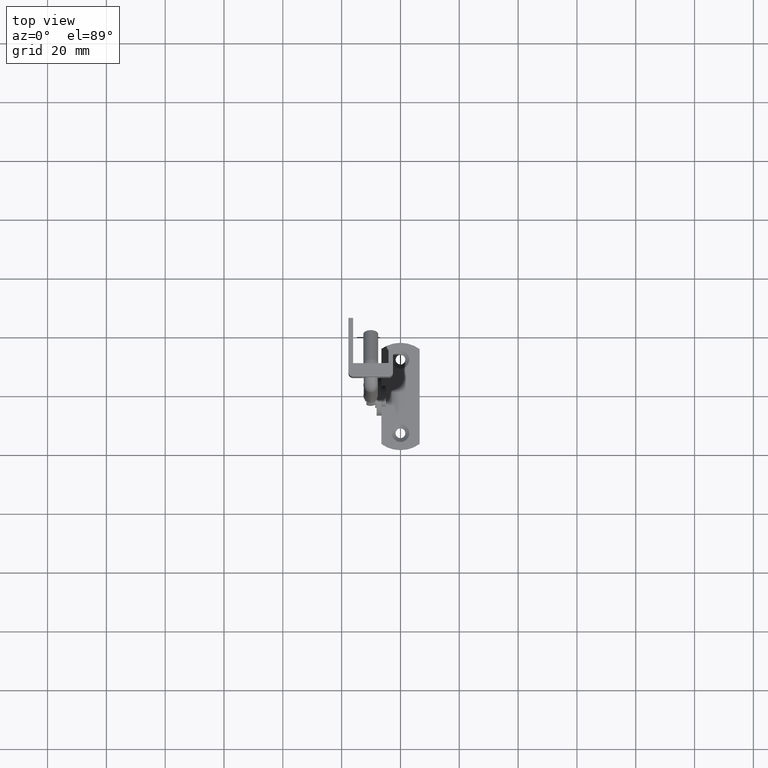
[diagram: clean part render]
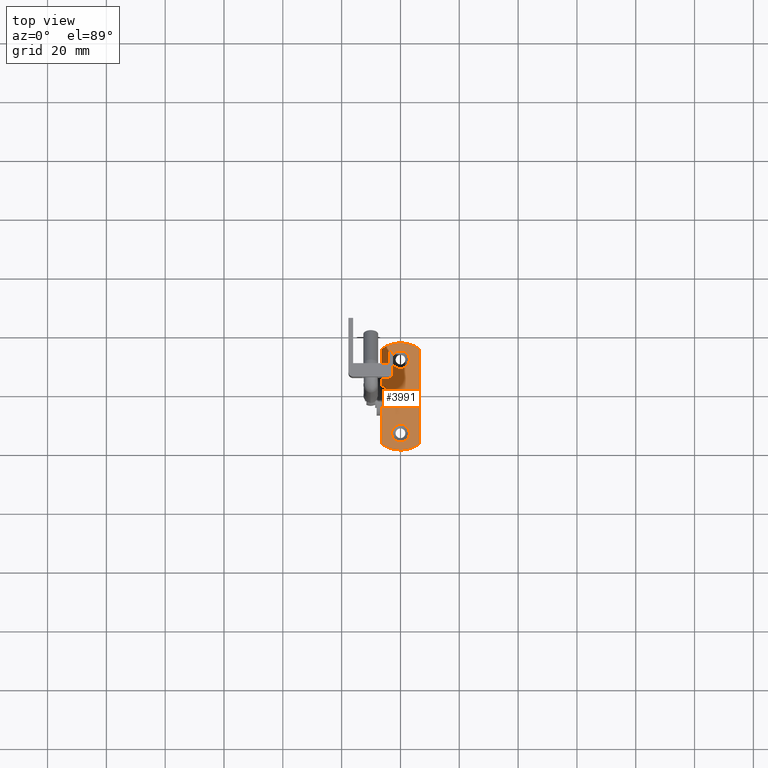
[diagram: same view with one face highlighted and labeled with its STEP entity id]
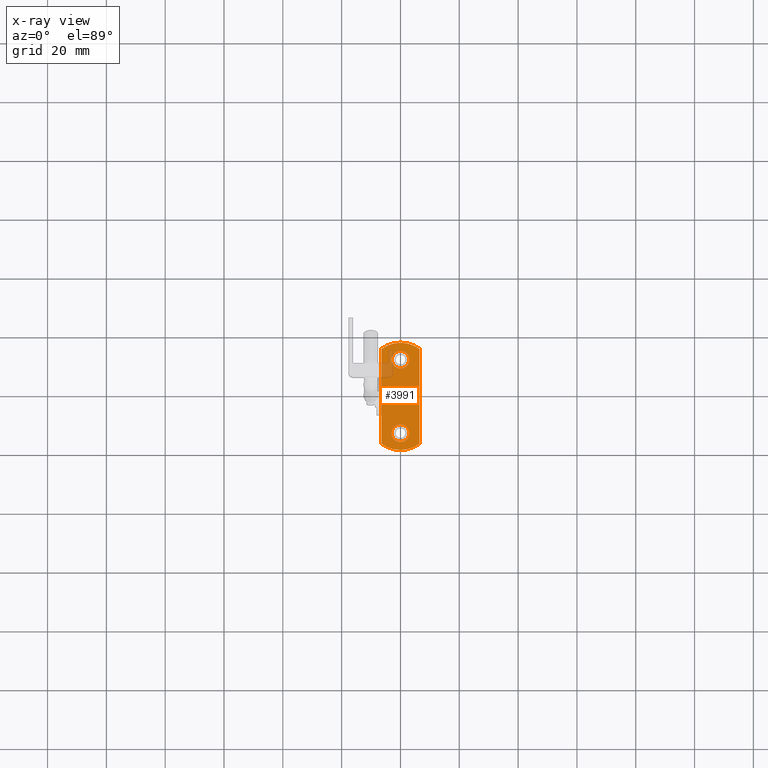
[diagram: x-ray of the same camera — body ghosted, the highlighted face saturated]
A machine part, top view. The second image highlights one B-rep face of the part: STEP entity #3991.
The next image is the same camera in x-ray: the body ghosted, the highlighted face saturated — about 6% of this face is hidden behind the body in this view.
In plain terms, the highlighted face is a freeform B-spline surface patch.
Its self-contained STEP definition (entity closure, byte-faithful):
#2705=CARTESIAN_POINT('',(2.529120146212343,14.113552381015570,1.599991000042932));
#2706=VERTEX_POINT('',#2705);
#2712=CARTESIAN_POINT('',(-3.0,12.500000000000000,1.599990999999905));
#2713=VERTEX_POINT('',#2712);
#2714=CARTESIAN_POINT('',(-3.0,12.500000000000000,1.599990999999905));
#2715=CARTESIAN_POINT('',(-3.0,15.500000000000004,1.599990999999905));
#2716=CARTESIAN_POINT('',(0.0,15.500000000000000,1.599990999999905));
#2717=CARTESIAN_POINT('',(1.644580967035528,15.499999999999998,1.599990999999906));
#2718=CARTESIAN_POINT('',(2.529120146212343,14.113552381015568,1.599991000042931));
#2726=(BOUNDED_CURVE()B_SPLINE_CURVE(2,(#2714,#2715,#2716,#2717,#2718),.UNSPECIFIED.,.F.,.U.)B_SPLINE_CURVE_WITH_KNOTS((3,2,3),(0.0,0.250000000000000,0.407950112548626),.UNSPECIFIED.)CURVE()GEOMETRIC_REPRESENTATION_ITEM()RATIONAL_B_SPLINE_CURVE((1.0,0.707106781186548,1.0,0.814949932494743,0.863729296906176))REPRESENTATION_ITEM(''));
#2727=EDGE_CURVE('',#2713,#2706,#2726,.T.);
#2729=CARTESIAN_POINT('',(0.235377293888718,9.509247998455212,1.599991000870328));
#2730=VERTEX_POINT('',#2729);
#2731=CARTESIAN_POINT('',(0.235377293888718,9.509247998455212,1.599991000870328));
#2732=CARTESIAN_POINT('',(0.117870327690698,9.500000000000002,1.599990999999905));
#2733=CARTESIAN_POINT('',(0.0,9.500000000000002,1.599990999999905));
#2734=CARTESIAN_POINT('',(-3.0,9.500000000000002,1.599990999999905));
#2735=CARTESIAN_POINT('',(-3.0,12.500000000000000,1.599990999999905));
#2743=(BOUNDED_CURVE()B_SPLINE_CURVE(2,(#2731,#2732,#2733,#2734,#2735),.UNSPECIFIED.,.F.,.U.)B_SPLINE_CURVE_WITH_KNOTS((3,2,3),(0.736331299871938,0.750000000000000,1.0),.UNSPECIFIED.)CURVE()GEOMETRIC_REPRESENTATION_ITEM()RATIONAL_B_SPLINE_CURVE((0.969723354584023,0.983986121689984,1.0,0.707106781186548,1.0))REPRESENTATION_ITEM(''));
#2744=EDGE_CURVE('',#2730,#2713,#2743,.T.);
#2848=CARTESIAN_POINT('',(3.0,12.500000000000000,1.599990999999905));
#2849=VERTEX_POINT('',#2848);
#2850=CARTESIAN_POINT('',(3.0,12.500000000000000,1.599990999999905));
#2851=CARTESIAN_POINT('',(3.000000000000000,9.726828537371553,1.599990999999905));
#2852=CARTESIAN_POINT('',(0.235377293888718,9.509247998455212,1.599991000870328));
#2860=(BOUNDED_CURVE()B_SPLINE_CURVE(2,(#2850,#2851,#2852),.UNSPECIFIED.,.F.,.U.)B_SPLINE_CURVE_WITH_KNOTS((3,3),(0.500000000000000,0.736331299871937),.UNSPECIFIED.)CURVE()GEOMETRIC_REPRESENTATION_ITEM()RATIONAL_B_SPLINE_CURVE((1.0,0.723120659496565,0.969723354584021))REPRESENTATION_ITEM(''));
#2861=EDGE_CURVE('',#2849,#2730,#2860,.T.);
#2863=CARTESIAN_POINT('',(2.529120146212344,14.113552381015571,1.599991000042931));
#2864=CARTESIAN_POINT('',(3.000000000000001,13.375484166979385,1.599990999999905));
#2865=CARTESIAN_POINT('',(3.0,12.500000000000000,1.599990999999905));
#2873=(BOUNDED_CURVE()B_SPLINE_CURVE(2,(#2863,#2864,#2865),.UNSPECIFIED.,.F.,.U.)B_SPLINE_CURVE_WITH_KNOTS((3,3),(0.407950112548626,0.500000000000000),.UNSPECIFIED.)CURVE()GEOMETRIC_REPRESENTATION_ITEM()RATIONAL_B_SPLINE_CURVE((0.863729296906176,0.892156848691804,1.0))REPRESENTATION_ITEM(''));
#2874=EDGE_CURVE('',#2706,#2849,#2873,.T.);
#3049=CARTESIAN_POINT('',(2.529120146212343,-10.886447618984430,1.599991000042932));
#3050=VERTEX_POINT('',#3049);
#3056=CARTESIAN_POINT('',(-3.0,-12.500000000000000,1.599990999999905));
#3057=VERTEX_POINT('',#3056);
#3058=CARTESIAN_POINT('',(-3.0,-12.500000000000000,1.599990999999905));
#3059=CARTESIAN_POINT('',(-3.0,-9.500000000000002,1.599990999999905));
#3060=CARTESIAN_POINT('',(0.0,-9.500000000000002,1.599990999999905));
#3061=CARTESIAN_POINT('',(1.644580967035526,-9.500000000000002,1.599990999999905));
#3062=CARTESIAN_POINT('',(2.529120146212343,-10.886447618984432,1.599991000042931));
#3070=(BOUNDED_CURVE()B_SPLINE_CURVE(2,(#3058,#3059,#3060,#3061,#3062),.UNSPECIFIED.,.F.,.U.)B_SPLINE_CURVE_WITH_KNOTS((3,2,3),(0.0,0.250000000000000,0.407950112548626),.UNSPECIFIED.)CURVE()GEOMETRIC_REPRESENTATION_ITEM()RATIONAL_B_SPLINE_CURVE((1.0,0.707106781186548,1.0,0.814949932494743,0.863729296906176))REPRESENTATION_ITEM(''));
#3071=EDGE_CURVE('',#3057,#3050,#3070,.T.);
#3073=CARTESIAN_POINT('',(0.235377293888717,-15.490752001544790,1.599991000870329));
#3074=VERTEX_POINT('',#3073);
#3075=CARTESIAN_POINT('',(0.235377293888717,-15.490752001544786,1.599991000870329));
#3076=CARTESIAN_POINT('',(0.117870327690697,-15.500000000000002,1.599990999999906));
#3077=CARTESIAN_POINT('',(0.0,-15.500000000000000,1.599990999999905));
#3078=CARTESIAN_POINT('',(-3.0,-15.500000000000004,1.599990999999905));
#3079=CARTESIAN_POINT('',(-3.0,-12.500000000000000,1.599990999999905));
#3087=(BOUNDED_CURVE()B_SPLINE_CURVE(2,(#3075,#3076,#3077,#3078,#3079),.UNSPECIFIED.,.F.,.U.)B_SPLINE_CURVE_WITH_KNOTS((3,2,3),(0.736331299871938,0.750000000000000,1.0),.UNSPECIFIED.)CURVE()GEOMETRIC_REPRESENTATION_ITEM()RATIONAL_B_SPLINE_CURVE((0.969723354584024,0.983986121689984,1.0,0.707106781186548,1.0))REPRESENTATION_ITEM(''));
#3088=EDGE_CURVE('',#3074,#3057,#3087,.T.);
#3192=CARTESIAN_POINT('',(3.0,-12.500000000000000,1.599990999999905));
#3193=VERTEX_POINT('',#3192);
#3194=CARTESIAN_POINT('',(3.0,-12.500000000000000,1.599990999999905));
#3195=CARTESIAN_POINT('',(3.000000000000000,-15.273171462628458,1.599990999999905));
#3196=CARTESIAN_POINT('',(0.235377293888717,-15.490752001544793,1.599991000870329));
#3204=(BOUNDED_CURVE()B_SPLINE_CURVE(2,(#3194,#3195,#3196),.UNSPECIFIED.,.F.,.U.)B_SPLINE_CURVE_WITH_KNOTS((3,3),(0.500000000000000,0.736331299871937),.UNSPECIFIED.)CURVE()GEOMETRIC_REPRESENTATION_ITEM()RATIONAL_B_SPLINE_CURVE((1.0,0.723120659496565,0.969723354584021))REPRESENTATION_ITEM(''));
#3205=EDGE_CURVE('',#3193,#3074,#3204,.T.);
#3207=CARTESIAN_POINT('',(2.529120146212343,-10.886447618984432,1.599991000042931));
#3208=CARTESIAN_POINT('',(3.000000000000000,-11.624515833020611,1.599990999999905));
#3209=CARTESIAN_POINT('',(3.0,-12.500000000000000,1.599990999999905));
#3217=(BOUNDED_CURVE()B_SPLINE_CURVE(2,(#3207,#3208,#3209),.UNSPECIFIED.,.F.,.U.)B_SPLINE_CURVE_WITH_KNOTS((3,3),(0.407950112548626,0.500000000000000),.UNSPECIFIED.)CURVE()GEOMETRIC_REPRESENTATION_ITEM()RATIONAL_B_SPLINE_CURVE((0.863729296906176,0.892156848691804,1.0))REPRESENTATION_ITEM(''));
#3218=EDGE_CURVE('',#3050,#3193,#3217,.T.);
#3600=CARTESIAN_POINT('',(-6.499999999999890,6.500000000000000,1.599990999999905));
#3601=VERTEX_POINT('',#3600);
#3643=CARTESIAN_POINT('',(-6.499999999999890,-6.499999999999890,1.599990999999855));
#3644=VERTEX_POINT('',#3643);
#3749=CARTESIAN_POINT('',(6.500000058880930,-16.124119631521101,1.599990999999855));
#3750=VERTEX_POINT('',#3749);
#3756=CARTESIAN_POINT('',(-6.499999999999890,-16.124119674649499,1.599990999999855));
#3757=VERTEX_POINT('',#3756);
#3758=CARTESIAN_POINT('',(6.500000058880920,-16.124119631521090,1.599990999999855));
#3759=CARTESIAN_POINT('',(0.000000045235587,-20.885155342753514,1.599990999999855));
#3760=CARTESIAN_POINT('',(-6.499999999999889,-16.124119674649510,1.599990999999855));
#3768=(BOUNDED_CURVE()B_SPLINE_CURVE(2,(#3758,#3759,#3760),.UNSPECIFIED.,.F.,.U.)CURVE()GEOMETRIC_REPRESENTATION_ITEM()QUASI_UNIFORM_CURVE()RATIONAL_B_SPLINE_CURVE((1.0,0.806738150280482,1.0))REPRESENTATION_ITEM(''));
#3769=EDGE_CURVE('',#3750,#3757,#3768,.T.);
#3792=CARTESIAN_POINT('',(-6.500000058880950,16.124119631521101,1.599990999999855));
#3793=VERTEX_POINT('',#3792);
#3794=CARTESIAN_POINT('',(-6.500000058880950,16.124119631521101,1.599990999999855));
#3795=CARTESIAN_POINT('',(-6.499999999999890,6.500000000000000,1.599990999999905));
#3796=QUASI_UNIFORM_CURVE('',1,(#3794,#3795),.UNSPECIFIED.,.F.,.U.);
#3797=EDGE_CURVE('',#3793,#3601,#3796,.T.);
#3837=CARTESIAN_POINT('',(6.500000058880910,16.124119631521101,1.599990999999855));
#3838=VERTEX_POINT('',#3837);
#3839=CARTESIAN_POINT('',(-6.500000058880937,16.124119631521079,1.599990999999855));
#3840=CARTESIAN_POINT('',(-2.081668E-014,20.885155375887098,1.599990999999856));
#3841=CARTESIAN_POINT('',(6.500000058880909,16.124119631521101,1.599990999999855));
#3849=(BOUNDED_CURVE()B_SPLINE_CURVE(2,(#3839,#3840,#3841),.UNSPECIFIED.,.F.,.U.)CURVE()GEOMETRIC_REPRESENTATION_ITEM()QUASI_UNIFORM_CURVE()RATIONAL_B_SPLINE_CURVE((1.0,0.806738148320099,1.0))REPRESENTATION_ITEM(''));
#3850=EDGE_CURVE('',#3793,#3838,#3849,.T.);
#3871=CARTESIAN_POINT('',(6.500000058880930,-16.124119631521101,1.599990999999855));
#3872=CARTESIAN_POINT('',(6.500000058880910,16.124119631521101,1.599990999999855));
#3873=QUASI_UNIFORM_CURVE('',1,(#3871,#3872),.UNSPECIFIED.,.F.,.U.);
#3874=EDGE_CURVE('',#3750,#3838,#3873,.T.);
#3885=CARTESIAN_POINT('',(-6.499999999999890,-6.499999999999890,1.599990999999855));
#3886=CARTESIAN_POINT('',(-6.499999999999890,-16.124119674649499,1.599990999999855));
#3887=QUASI_UNIFORM_CURVE('',1,(#3885,#3886),.UNSPECIFIED.,.F.,.U.);
#3888=EDGE_CURVE('',#3644,#3757,#3887,.T.);
#3923=CARTESIAN_POINT('',(-6.499999999999890,6.500000000000000,1.599990999999905));
#3924=CARTESIAN_POINT('',(-6.499999999999890,-6.499999999999890,1.599990999999855));
#3925=QUASI_UNIFORM_CURVE('',1,(#3923,#3924),.UNSPECIFIED.,.F.,.U.);
#3926=EDGE_CURVE('',#3601,#3644,#3925,.T.);
#3966=CARTESIAN_POINT('',(-7.149350039566633,-20.073174929255359,1.599990999999905));
#3967=CARTESIAN_POINT('',(7.149350388253788,-20.073174929255359,1.599990999999905));
#3968=CARTESIAN_POINT('',(-7.149350039566634,20.073175908261639,1.599990999999905));
#3969=CARTESIAN_POINT('',(7.149350388253788,20.073175908261639,1.599990999999905));
#3970=B_SPLINE_SURFACE_WITH_KNOTS('',1,1,((#3966,#3968),(#3967,#3969)),.UNSPECIFIED.,.F.,.F.,.U.,(2,2),(2,2),(0.0,14.298700427820419),(0.0,40.146350837516998),.UNSPECIFIED.);
#3971=ORIENTED_EDGE('',*,*,#3874,.T.);
#3972=ORIENTED_EDGE('',*,*,#3850,.F.);
#3973=ORIENTED_EDGE('',*,*,#3797,.T.);
#3974=ORIENTED_EDGE('',*,*,#3926,.T.);
#3975=ORIENTED_EDGE('',*,*,#3888,.T.);
#3976=ORIENTED_EDGE('',*,*,#3769,.F.);
#3977=EDGE_LOOP('',(#3971,#3972,#3973,#3974,#3975,#3976));
#3978=FACE_OUTER_BOUND('',#3977,.T.);
#3979=ORIENTED_EDGE('',*,*,#3205,.T.);
#3980=ORIENTED_EDGE('',*,*,#3088,.T.);
#3981=ORIENTED_EDGE('',*,*,#3071,.T.);
#3982=ORIENTED_EDGE('',*,*,#3218,.T.);
#3983=EDGE_LOOP('',(#3979,#3980,#3981,#3982));
#3984=FACE_BOUND('',#3983,.T.);
#3985=ORIENTED_EDGE('',*,*,#2861,.T.);
#3986=ORIENTED_EDGE('',*,*,#2744,.T.);
#3987=ORIENTED_EDGE('',*,*,#2727,.T.);
#3988=ORIENTED_EDGE('',*,*,#2874,.T.);
#3989=EDGE_LOOP('',(#3985,#3986,#3987,#3988));
#3990=FACE_BOUND('',#3989,.T.);
#3991=ADVANCED_FACE('',(#3978,#3984,#3990),#3970,.T.);